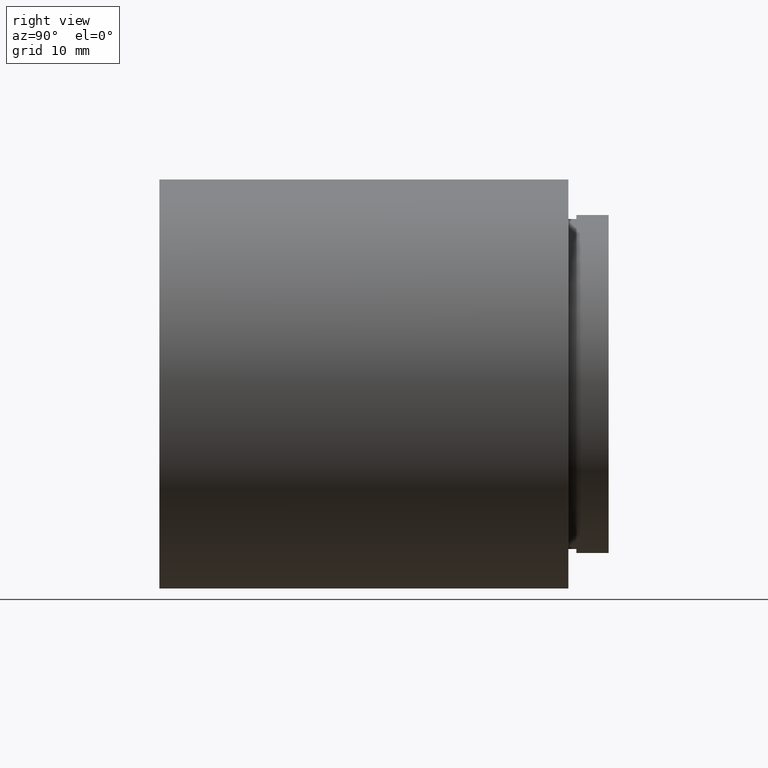
[diagram: clean part render]
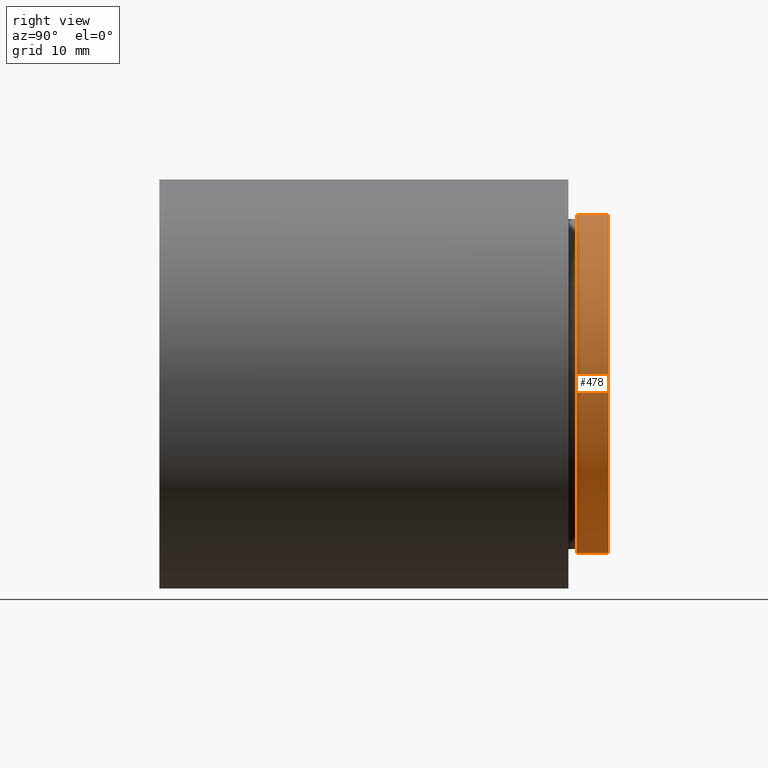
[diagram: same view with one face highlighted and labeled with its STEP entity id]
A machine part, right view. The second image highlights one B-rep face of the part: STEP entity #478.
In plain terms, the highlighted cylindrical surface (partial cylindrical patch) has radius 21 mm, axis along (-0, 1, -0).
Its self-contained STEP definition (entity closure, byte-faithful):
#2 = VERTEX_POINT ( 'NONE', #121 ) ;
#45 = EDGE_CURVE ( 'NONE', #444, #450, #503, .T. ) ;
#97 = DIRECTION ( 'NONE',  ( -0.0000000000000000000, 1.000000000000000000, -0.0000000000000000000 ) ) ;
#101 = CARTESIAN_POINT ( 'NONE',  ( 0.0000000000000000000, 55.79999999999999000, 0.0000000000000000000 ) ) ;
#121 = CARTESIAN_POINT ( 'NONE',  ( 0.0000000000000000000, 51.79999999999998300, 21.00000000000001400 ) ) ;
#151 = DIRECTION ( 'NONE',  ( 0.0000000000000000000, 0.0000000000000000000, 1.000000000000000000 ) ) ;
#165 = AXIS2_PLACEMENT_3D ( 'NONE', #101, #202, #151 ) ;
#177 = AXIS2_PLACEMENT_3D ( 'NONE', #250, #97, #439 ) ;
#183 = CARTESIAN_POINT ( 'NONE',  ( 2.571758278209443600E-015, 161.3761669434274500, -21.00000000000001400 ) ) ;
#195 = ORIENTED_EDGE ( 'NONE', *, *, #45, .T. ) ;
#202 = DIRECTION ( 'NONE',  ( -0.0000000000000000000, 1.000000000000000000, -0.0000000000000000000 ) ) ;
#208 = CARTESIAN_POINT ( 'NONE',  ( 2.571758278209443600E-015, 55.79999999999999000, -21.00000000000001400 ) ) ;
#238 = EDGE_LOOP ( 'NONE', ( #339, #195, #369, #263 ) ) ;
#240 = EDGE_CURVE ( 'NONE', #2, #444, #300, .T. ) ;
#248 = CYLINDRICAL_SURFACE ( 'NONE', #551, 21.00000000000001400 ) ;
#250 = CARTESIAN_POINT ( 'NONE',  ( 0.0000000000000000000, 51.79999999999998300, 0.0000000000000000000 ) ) ;
#263 = ORIENTED_EDGE ( 'NONE', *, *, #489, .F. ) ;
#269 = DIRECTION ( 'NONE',  ( -0.0000000000000000000, 1.000000000000000000, -0.0000000000000000000 ) ) ;
#287 = VERTEX_POINT ( 'NONE', #578 ) ;
#291 = LINE ( 'NONE', #362, #467 ) ;
#300 = CIRCLE ( 'NONE', #177, 21.00000000000001400 ) ;
#319 = EDGE_CURVE ( 'NONE', #287, #450, #488, .T. ) ;
#339 = ORIENTED_EDGE ( 'NONE', *, *, #240, .T. ) ;
#362 = CARTESIAN_POINT ( 'NONE',  ( 0.0000000000000000000, 161.3761669434274500, 21.00000000000001400 ) ) ;
#365 = CARTESIAN_POINT ( 'NONE',  ( 0.0000000000000000000, 161.3761669434274500, 0.0000000000000000000 ) ) ;
#369 = ORIENTED_EDGE ( 'NONE', *, *, #319, .F. ) ;
#391 = VECTOR ( 'NONE', #269, 1000.000000000000000 ) ;
#439 = DIRECTION ( 'NONE',  ( 0.0000000000000000000, 0.0000000000000000000, 1.000000000000000000 ) ) ;
#444 = VERTEX_POINT ( 'NONE', #533 ) ;
#448 = DIRECTION ( 'NONE',  ( -0.0000000000000000000, 1.000000000000000000, -0.0000000000000000000 ) ) ;
#450 = VERTEX_POINT ( 'NONE', #208 ) ;
#467 = VECTOR ( 'NONE', #448, 1000.000000000000000 ) ;
#478 = ADVANCED_FACE ( 'NONE', ( #570 ), #248, .T. ) ;
#488 = CIRCLE ( 'NONE', #165, 21.00000000000001400 ) ;
#489 = EDGE_CURVE ( 'NONE', #2, #287, #291, .T. ) ;
#503 = LINE ( 'NONE', #183, #391 ) ;
#533 = CARTESIAN_POINT ( 'NONE',  ( 2.571758278209443600E-015, 51.79999999999998300, -21.00000000000001400 ) ) ;
#544 = DIRECTION ( 'NONE',  ( 0.0000000000000000000, 0.0000000000000000000, 1.000000000000000000 ) ) ;
#551 = AXIS2_PLACEMENT_3D ( 'NONE', #365, #585, #544 ) ;
#570 = FACE_OUTER_BOUND ( 'NONE', #238, .T. ) ;
#578 = CARTESIAN_POINT ( 'NONE',  ( 0.0000000000000000000, 55.79999999999999000, 21.00000000000001400 ) ) ;
#585 = DIRECTION ( 'NONE',  ( -0.0000000000000000000, 1.000000000000000000, -0.0000000000000000000 ) ) ;